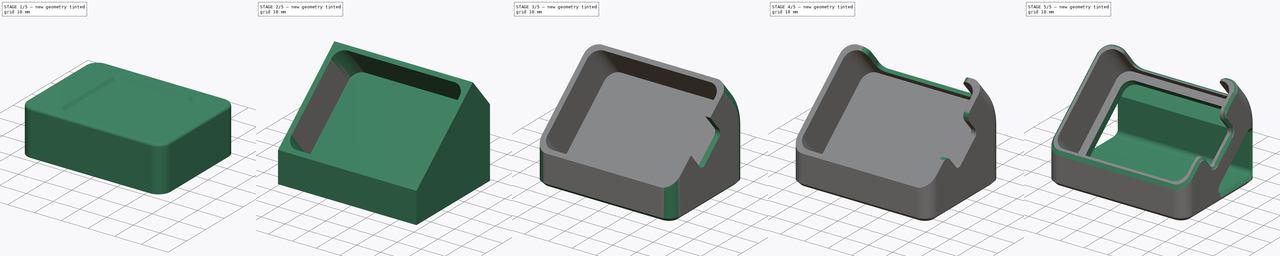
[diagram: build sequence overview — one tinted view per stage of 5, left to right]
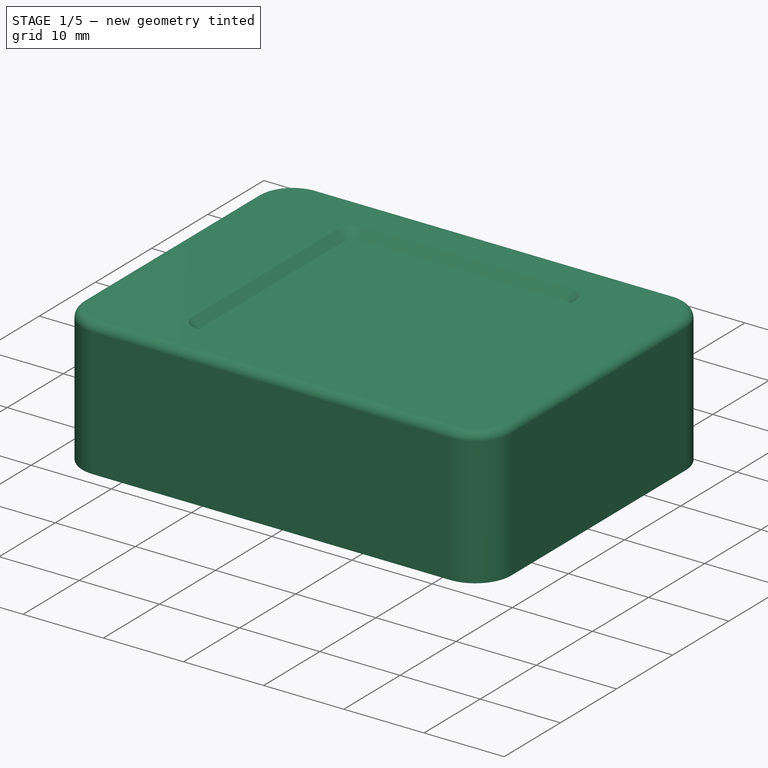
[diagram: stage 1 of 5 — iso view after this stage's code; geometry added in this stage tinted green]
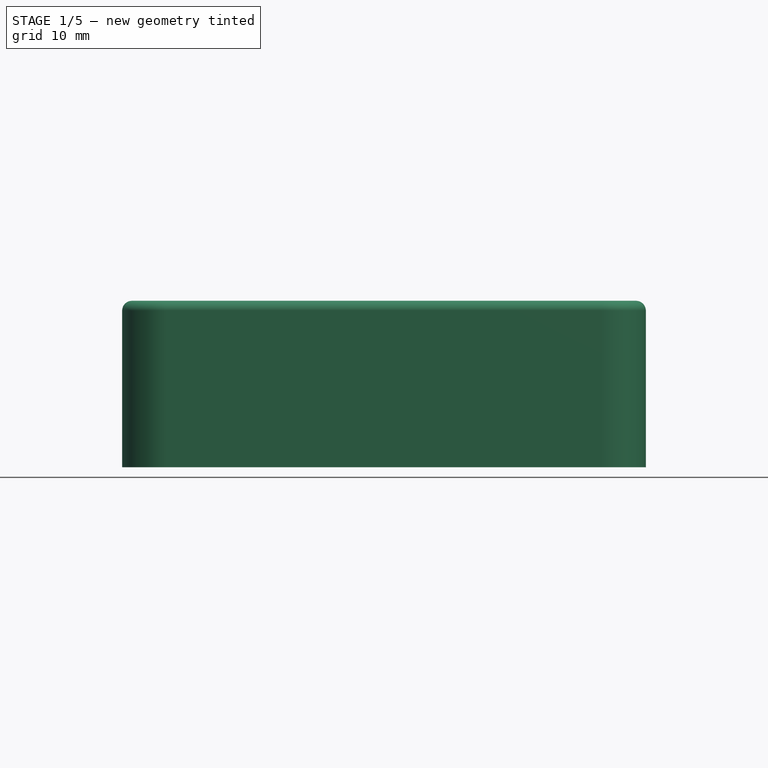
[diagram: stage 1 of 5 — front view after this stage's code; geometry added in this stage tinted green]
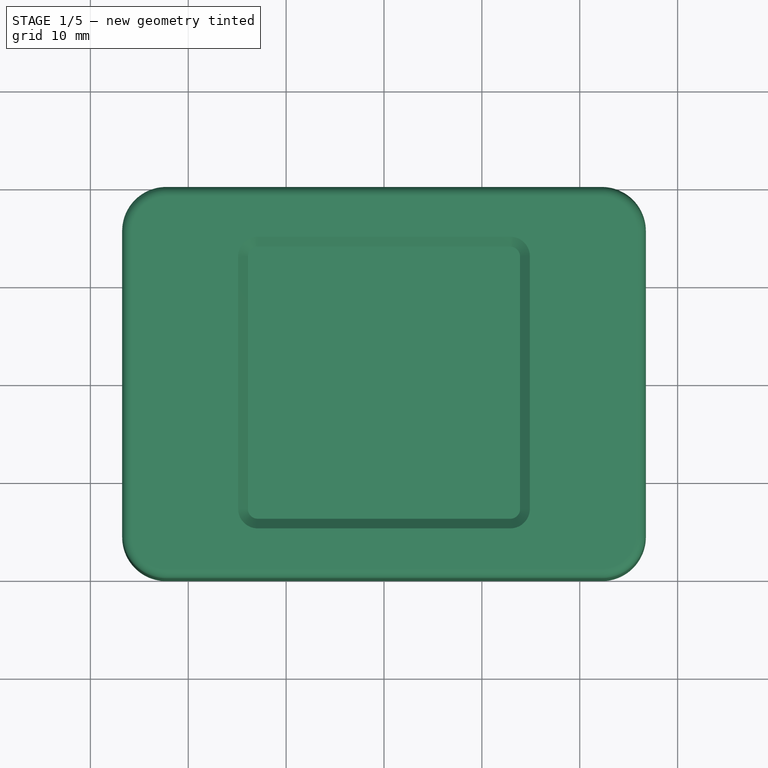
[diagram: stage 1 of 5 — top view after this stage's code; geometry added in this stage tinted green]
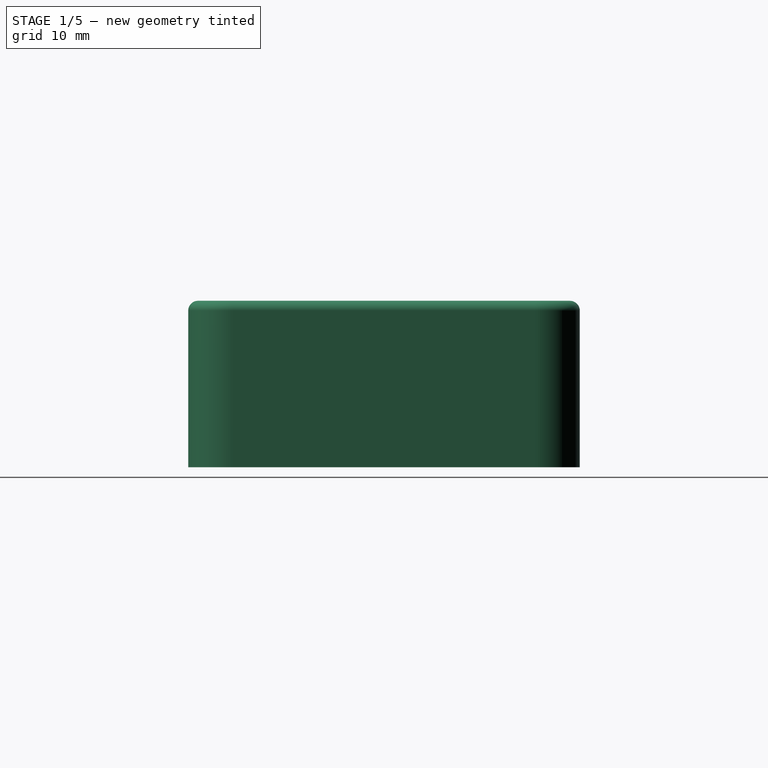
[diagram: stage 1 of 5 — right view after this stage's code; geometry added in this stage tinted green]
FCSTD DOCUMENT  (FreeCAD 1.0R39319 (Git))
Label: esp32s3-ePaper-stand
License: All rights reserved
LicenseURL: http://en.wikipedia.org/wiki/All_rights_reserved
objects: Sketcher::SketchObject×9, PartDesign::Pocket×8, PartDesign::Fillet×5, PartDesign::Chamfer×3, PartDesign::Pad×2, PartDesign::Body×2, PartDesign::SubShapeBinder×2
note: 76 computed .brp shape members not serialized (recipe doc carries the construction recipe); baked Part::Feature solids carry a one-line shape summary decoded from their .brp

FEATURE [Sketcher::SketchObject] Sketch
  ArcFitTolerance = 1e-06
  AttachmentSupport = -> [XY_Plane]
  FullyConstrained = true
  MakeInternals = false
  MapMode = 5
  sketch-geometry (10):
    g0: LineSegment StartX=-22.25 StartY=-20 StartZ=0 EndX=22.25 EndY=-20 EndZ=0
    g1: LineSegment StartX=26.75 StartY=-15.5 StartZ=0 EndX=26.75 EndY=15.5 EndZ=0
    g2: LineSegment StartX=22.25 StartY=20 StartZ=0 EndX=-22.25 EndY=20 EndZ=0
    g3: LineSegment StartX=-26.75 StartY=15.5 StartZ=0 EndX=-26.75 EndY=-15.5 EndZ=0
    g4: ArcOfCircle CenterX=-22.25 CenterY=-15.5 CenterZ=0 NormalX=0 NormalY=0 NormalZ=1 AngleXU=0 Radius=4.5 StartAngle=3.14159 EndAngle=4.71239
    g5: ArcOfCircle CenterX=22.25 CenterY=-15.5 CenterZ=0 NormalX=0 NormalY=0 NormalZ=1 AngleXU=0 Radius=4.5 StartAngle=4.71239 EndAngle=6.28319
    g6: ArcOfCircle CenterX=22.25 CenterY=15.5 CenterZ=0 NormalX=0 NormalY=0 NormalZ=1 AngleXU=0 Radius=4.5 StartAngle=1e-16 EndAngle=1.5708
    g7: ArcOfCircle CenterX=-22.25 CenterY=15.5 CenterZ=0 NormalX=0 NormalY=0 NormalZ=1 AngleXU=0 Radius=4.5 StartAngle=1.5708 EndAngle=3.14159
    g8: GeomPoint [constr] X=26.75 Y=20 Z=0
    g9: GeomPoint [constr] X=0 Y=0 Z=0
  constraints (22):
    c: Tangent(g0,g4) = -1.5708
    c: Tangent(g0,g5) = -1.5708
    c: Tangent(g1,g5) = -1.5708
    c: Tangent(g1,g6) = -1.5708
    c: Tangent(g2,g6) = -1.5708
    c: Tangent(g2,g7) = -1.5708
    c: Tangent(g3,g7) = -1.5708
    c: Tangent(g3,g4) = -1.5708
    c: Horizontal(g0)
    c: Horizontal(g2)
    c: Vertical(g1)
    c: Vertical(g3)
    c: Equal(g4,g5)
    c: Equal(g5,g6)
    c: Equal(g6,g7)
    c: Symmetric(g2,g0,g9)
    c: PointOnObject(g8,g1)
    c: PointOnObject(g8,g2)
    c: Distance(g1,g3) = 53.5
    c: Distance(g0,g2) = 40
    c: Radius(g5) = 4.5
    c: Coincident(g9,g-1)
FEATURE [PartDesign::Pad] Pad
  Direction = (0,0,1)
  Length = 17
  Length2 = 10
  Profile = -> Sketch
  ReferenceAxis = -> Sketch [N_Axis]
  Refine = true
  Suppressed = false
  Type = 0
FEATURE [PartDesign::Fillet] Fillet
  Base = -> Pad [Edge7]
  BaseFeature = -> Pad
  Radius = 1
  Refine = true
  SupportTransform = false
  Suppressed = false
  UseAllEdges = false
FEATURE [Sketcher::SketchObject] Sketch001
  ArcFitTolerance = 1e-06
  AttachmentOffset = pos=(0,0,-1) rot=(0,0,1;0rad)
  AttachmentSupport = -> [Fillet]
  FullyConstrained = true
  MakeInternals = false
  MapMode = 5
  Placement = pos=(0,0,16) rot=(0,0,1;0rad)
  sketch-geometry (10):
    g0: LineSegment StartX=-12.9 StartY=-13.9 StartZ=0 EndX=12.9 EndY=-13.9 EndZ=0
    g1: LineSegment StartX=13.9 StartY=-12.9 StartZ=0 EndX=13.9 EndY=12.9 EndZ=0
    g2: LineSegment StartX=12.9 StartY=13.9 StartZ=0 EndX=-12.9 EndY=13.9 EndZ=0
    g3: LineSegment StartX=-13.9 StartY=12.9 StartZ=0 EndX=-13.9 EndY=-12.9 EndZ=0
    g4: ArcOfCircle CenterX=-12.9 CenterY=-12.9 CenterZ=0 NormalX=0 NormalY=0 NormalZ=1 AngleXU=0 Radius=1 StartAngle=3.14159 EndAngle=4.71239
    g5: ArcOfCircle CenterX=12.9 CenterY=-12.9 CenterZ=0 NormalX=0 NormalY=0 NormalZ=1 AngleXU=0 Radius=1 StartAngle=4.71239 EndAngle=6.28319
    g6: ArcOfCircle CenterX=12.9 CenterY=12.9 CenterZ=0 NormalX=0 NormalY=0 NormalZ=1 AngleXU=0 Radius=1 StartAngle=0 EndAngle=1.5708
    g7: ArcOfCircle CenterX=-12.9 CenterY=12.9 CenterZ=0 NormalX=0 NormalY=0 NormalZ=1 AngleXU=0 Radius=1 StartAngle=1.5708 EndAngle=3.14159
    g8: GeomPoint [constr] X=13.9 Y=13.9 Z=0
    g9: GeomPoint [constr] X=0 Y=0 Z=0
  constraints (22):
    c: Tangent(g0,g4) = -1.5708
    c: Tangent(g0,g5) = -1.5708
    c: Tangent(g1,g5) = -1.5708
    c: Tangent(g1,g6) = -1.5708
    c: Tangent(g2,g6) = -1.5708
    c: Tangent(g2,g7) = -1.5708
    c: Tangent(g3,g7) = -1.5708
    c: Tangent(g3,g4) = -1.5708
    c: Horizontal(g0)
    c: Horizontal(g2)
    c: Vertical(g1)
    c: Vertical(g3)
    c: Equal(g4,g5)
    c: Equal(g5,g6)
    c: Equal(g6,g7)
    c: Symmetric(g2,g0,g9)
    c: PointOnObject(g8,g1)
    c: PointOnObject(g8,g2)
    c: Distance(g1,g3) = 27.8
    c: Radius(g5) = 1
    c: Coincident(g9,g-1)
    c: Equal(g3,g0)
FEATURE [PartDesign::Pocket] Pocket
  BaseFeature = -> Fillet
  Direction = (0,0,-1)
  Length = 5
  Length2 = 5
  Profile = -> Sketch001
  ReferenceAxis = -> Sketch001 [N_Axis]
  Refine = true
  Reversed = true
  Suppressed = false
  TaperAngle = 45
  Type = 0
FEATURE [Sketcher::SketchObject] Sketch002
  ArcFitTolerance = 1e-06
  AttachmentSupport = -> [Pocket]
  ExternalGeometry = -> [Pocket]
  FullyConstrained = true
  MakeInternals = false
  MapMode = 5
  Placement = pos=(0,20,0) rot=(0,0.707107,0.707107;3.14159rad)
  sketch-geometry (12):
    g0: LineSegment StartX=3.55 StartY=9.6 StartZ=0 EndX=3.55 EndY=7.5 EndZ=0
    g1: LineSegment StartX=3.55 StartY=7.5 StartZ=0 EndX=16.05 EndY=7.5 EndZ=0
    g2: LineSegment StartX=16.05 StartY=7.5 StartZ=0 EndX=16.05 EndY=9.6 EndZ=0
    g3: LineSegment StartX=16.05 StartY=9.6 StartZ=0 EndX=3.55 EndY=9.6 EndZ=0
    g4: LineSegment StartX=-17.75 StartY=13.5 StartZ=0 EndX=-17.75 EndY=6.3 EndZ=0
    g5: LineSegment StartX=-17.75 StartY=6.3 StartZ=0 EndX=-10.55 EndY=6.3 EndZ=0
    g6: LineSegment StartX=-10.55 StartY=6.3 StartZ=0 EndX=-10.55 EndY=13.5 EndZ=0
    g7: LineSegment StartX=-10.55 StartY=13.5 StartZ=0 EndX=-17.75 EndY=13.5 EndZ=0
    g8: LineSegment StartX=-6.25 StartY=13.5 StartZ=0 EndX=-6.25 EndY=6.3 EndZ=0
    g9: LineSegment StartX=-6.25 StartY=6.3 StartZ=0 EndX=0.95 EndY=6.3 EndZ=0
    g10: LineSegment StartX=0.95 StartY=6.3 StartZ=0 EndX=0.95 EndY=13.5 EndZ=0
    g11: LineSegment StartX=0.95 StartY=13.5 StartZ=0 EndX=-6.25 EndY=13.5 EndZ=0
  constraints (36):
    c: Coincident(g0,g1)
    c: Coincident(g1,g2)
    c: Coincident(g2,g3)
    c: Coincident(g3,g0)
    c: Vertical(g0)
    c: Vertical(g2)
    c: Horizontal(g1)
    c: Horizontal(g3)
    c: Coincident(g4,g5)
    c: Coincident(g5,g6)
    c: Coincident(g6,g7)
    c: Coincident(g7,g4)
    c: Vertical(g4)
    c: Vertical(g6)
    c: Horizontal(g5)
    c: Horizontal(g7)
    c: Coincident(g8,g9)
    c: Coincident(g9,g10)
    c: Coincident(g10,g11)
    c: Coincident(g11,g8)
    c: Vertical(g8)
    c: Vertical(g10)
    c: Horizontal(g9)
    c: Horizontal(g11)
    c: Equal(g7,g11)
    c: Equal(g11,g8)
    c: Equal(g7,g6)
    c: Horizontal(g5,g8)
    c: DistanceY(g-1,g9) = 6.3
    c: DistanceY(g-1,g1) = 7.5
    c: DistanceX(g3,g3) = 12.5
    c: DistanceX(g11,g11) = 7.2
    c: DistanceX(g6,g8) = 4.3
    c: DistanceX(g-3,g4) = 9
    c: DistanceX(g2,g-4) = 10.7
    c: DistanceY(g2,g2) = 2.1
FEATURE [PartDesign::Pocket] Pocket001
  BaseFeature = -> Pocket
  Direction = (0,-1,2e-16)
  Length = 0.5
  Length2 = 5
  Profile = -> Sketch002
  ReferenceAxis = -> Sketch002 [N_Axis]
  Refine = true
  Suppressed = false
  Type = 0
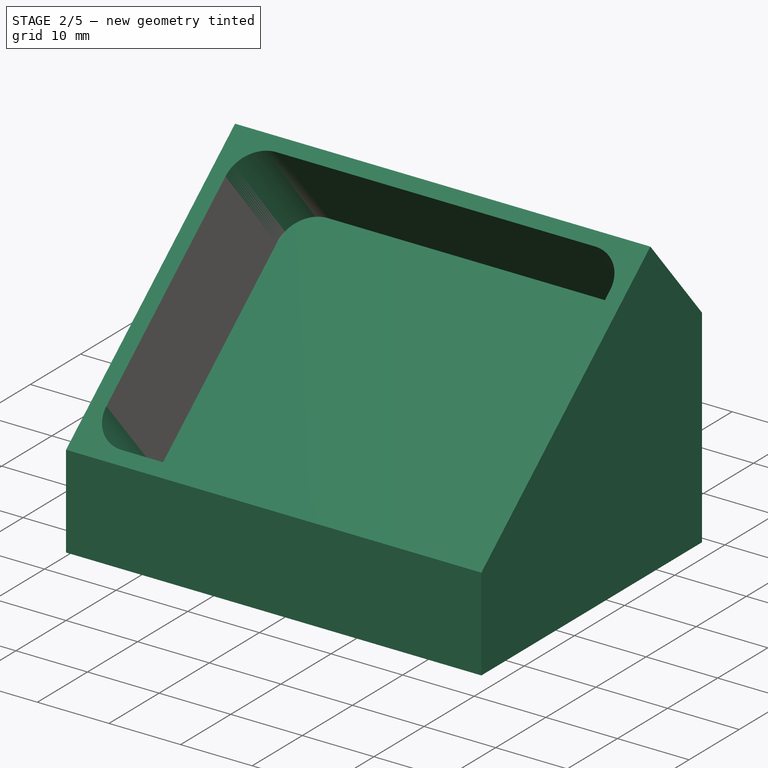
[diagram: stage 2 of 5 — iso view after this stage's code; geometry added in this stage tinted green]
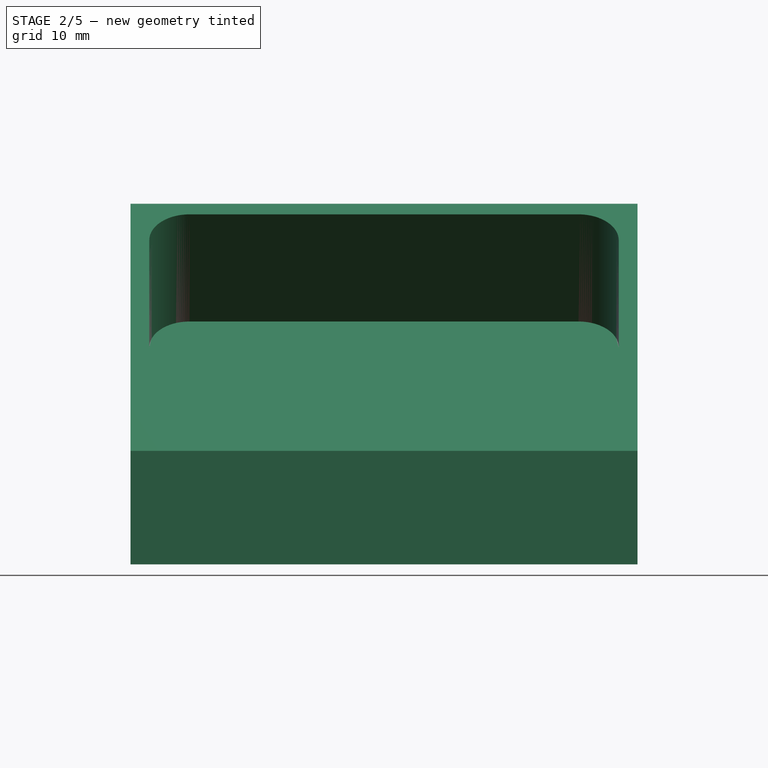
[diagram: stage 2 of 5 — front view after this stage's code; geometry added in this stage tinted green]
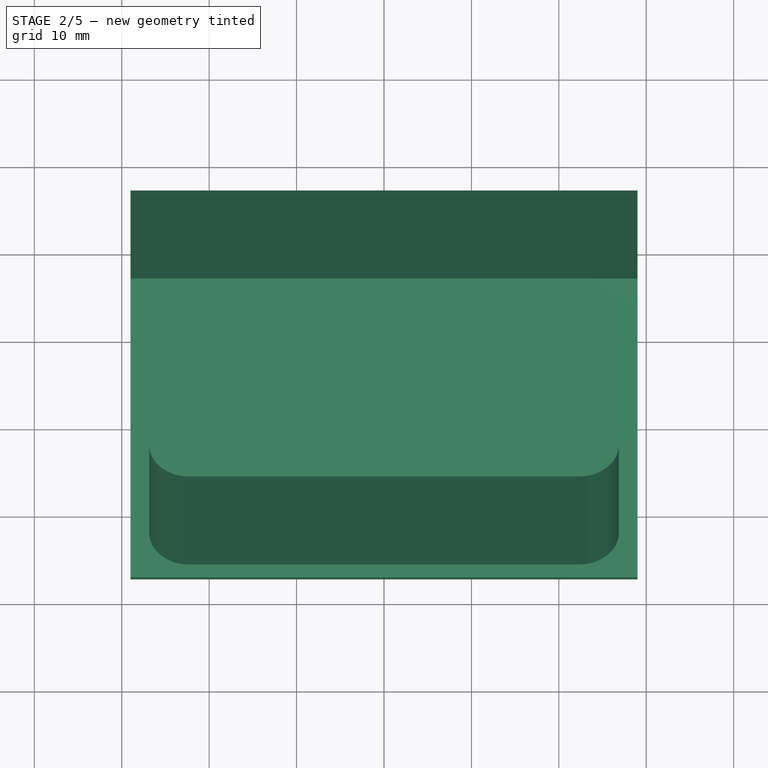
[diagram: stage 2 of 5 — top view after this stage's code; geometry added in this stage tinted green]
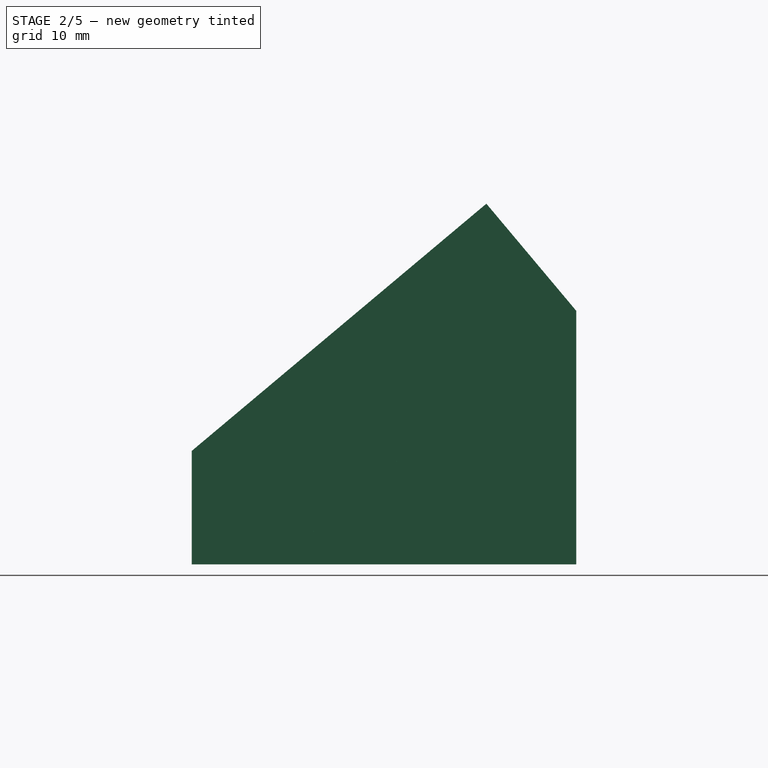
[diagram: stage 2 of 5 — right view after this stage's code; geometry added in this stage tinted green]
FEATURE [Sketcher::SketchObject] Sketch003
  ArcFitTolerance = 1e-06
  AttachmentSupport = -> [Pocket001]
  FullyConstrained = true
  MakeInternals = false
  MapMode = 5
  Placement = pos=(26.75,0,0) rot=(0.57735,0.57735,0.57735;2.0944rad)
  sketch-geometry (10):
    g0: LineSegment StartX=-3.6 StartY=8.4 StartZ=0 EndX=3.6 EndY=8.4 EndZ=0
    g1: LineSegment StartX=4.6 StartY=9.4 StartZ=0 EndX=4.6 EndY=10.9 EndZ=0
    g2: LineSegment StartX=3.6 StartY=11.9 StartZ=0 EndX=-3.6 EndY=11.9 EndZ=0
    g3: LineSegment StartX=-4.6 StartY=10.9 StartZ=0 EndX=-4.6 EndY=9.4 EndZ=0
    g4: ArcOfCircle CenterX=-3.6 CenterY=9.4 CenterZ=0 NormalX=0 NormalY=0 NormalZ=1 AngleXU=0 Radius=1 StartAngle=3.14159 EndAngle=4.71239
    g5: ArcOfCircle CenterX=3.6 CenterY=9.4 CenterZ=0 NormalX=0 NormalY=0 NormalZ=1 AngleXU=0 Radius=1 StartAngle=4.71239 EndAngle=6.28319
    g6: ArcOfCircle CenterX=3.6 CenterY=10.9 CenterZ=0 NormalX=0 NormalY=0 NormalZ=1 AngleXU=0 Radius=1 StartAngle=0 EndAngle=1.5708
    g7: ArcOfCircle CenterX=-3.6 CenterY=10.9 CenterZ=0 NormalX=0 NormalY=0 NormalZ=1 AngleXU=0 Radius=1 StartAngle=1.5708 EndAngle=3.14159
    g8: GeomPoint [constr] X=4.6 Y=11.9 Z=0
    g9: GeomPoint [constr] X=0 Y=10.15 Z=0
  constraints (23):
    c: Tangent(g0,g4) = -1.5708
    c: Tangent(g0,g5) = -1.5708
    c: Tangent(g1,g5) = -1.5708
    c: Tangent(g1,g6) = -1.5708
    c: Tangent(g2,g6) = -1.5708
    c: Tangent(g2,g7) = -1.5708
    c: Tangent(g3,g7) = -1.5708
    c: Tangent(g3,g4) = -1.5708
    c: Horizontal(g0)
    c: Horizontal(g2)
    c: Vertical(g1)
    c: Vertical(g3)
    c: Equal(g4,g5)
    c: Equal(g5,g6)
    c: Equal(g6,g7)
    c: Symmetric(g2,g0,g9)
    c: PointOnObject(g8,g1)
    c: PointOnObject(g8,g2)
    c: Distance(g1,g3) = 9.2
    c: Distance(g0,g2) = 3.5
    c: Radius(g5) = 1
    c: PointOnObject(g9,g-2)
    c: DistanceY(g-1,g0) = 8.4
FEATURE [PartDesign::Pocket] Pocket002
  BaseFeature = -> Pocket001
  Direction = (-1,0,0)
  Length = 5
  Length2 = 5
  Profile = -> Sketch003
  ReferenceAxis = -> Sketch003 [N_Axis]
  Refine = true
  Suppressed = false
  Type = 0
FEATURE [PartDesign::Body] Body  label="esp32module"
  AllowCompound = false
  Group = -> [Sketch,Pad,Fillet,Sketch001,Pocket,Sketch002,Pocket001,Sketch003,Pocket002]
  Origin = -> Origin
  Tip = -> Pocket002
FEATURE [PartDesign::SubShapeBinder] Binder
  BindCopyOnChange = 0
  BindMode = 0
  ClaimChildren = false
  Context = -> Body001 [Binder.]
  Fuse = false
  MakeFace = true
  OffsetFill = false
  OffsetIntersection = false
  OffsetJoinType = 0
  OffsetOpenResult = false
  PartialLoad = false
  Placement = pos=(0,0,0) rot=(1,0,0;0.698132rad)
  Refine = true
  Relative = true
  Support = -> [Body]
  _Version = 2
FEATURE [Sketcher::SketchObject] Sketch004
  ArcFitTolerance = 1e-06
  AttachmentSupport = -> [YZ_Plane001]
  ExternalGeometry = -> [Binder]
  FullyConstrained = true
  MakeInternals = false
  MapMode = 5
  Placement = pos=(0,0,0) rot=(0.57735,0.57735,0.57735;2.0944rad)
  sketch-geometry (5):
    g0: LineSegment StartX=-27.1376 StartY=-14.8558 StartZ=0 EndX=-27.1376 EndY=-1.88462 EndZ=0
    g1: LineSegment StartX=-27.1376 StartY=-1.88462 StartZ=0 EndX=6.56838 EndY=26.398 EndZ=0
    g2: LineSegment StartX=6.56838 StartY=26.398 StartZ=0 EndX=16.853 EndY=14.1413 EndZ=0
    g3: LineSegment StartX=16.853 StartY=14.1413 StartZ=0 EndX=16.853 EndY=-14.8558 EndZ=0
    g4: LineSegment StartX=16.853 StartY=-14.8558 StartZ=0 EndX=-27.1376 EndY=-14.8558 EndZ=0
  constraints (15):
    c: Coincident(g0,g1)
    c: Coincident(g1,g2)
    c: Coincident(g2,g3)
    c: Vertical(g3)
    c: Coincident(g3,g4)
    c: Coincident(g4,g0)
    c: Horizontal(g4)
    c: Vertical(g0)
    c: PointOnObject(g-3,g1)
    c: PointOnObject(g-4,g1)
    c: Distance(g0,g-3) = 2
    c: Distance(g-4,g1) = 2
    c: Perpendicular(g2,g1)
    c: DistanceY(g0,g-3) = 2
    c: PointOnObject(g2,g-5)
FEATURE [PartDesign::Pad] Pad001
  Direction = (1,0,0)
  Length = 58
  Length2 = 10
  Midplane = true
  Placement = pos=(0,0,0) rot=(1,1,1;2.0944rad)
  Profile = -> Sketch004
  ReferenceAxis = -> Sketch004 [N_Axis]
  Refine = true
  Suppressed = false
  Type = 0
FEATURE [PartDesign::SubShapeBinder] Binder001
  BindCopyOnChange = 0
  BindMode = 0
  ClaimChildren = false
  Context = -> Body001 [Binder001.]
  Fuse = false
  MakeFace = true
  Offset = 0.1
  OffsetFill = false
  OffsetIntersection = false
  OffsetJoinType = 0
  OffsetOpenResult = false
  PartialLoad = false
  Refine = true
  Relative = true
  Support = -> [Binder[Face4]]
  _Version = 2
FEATURE [PartDesign::Pocket] Pocket003
  BaseFeature = -> Pad001
  Direction = (0,0.642788,-0.766044)
  Length = 5
  Length2 = 5
  Placement = pos=(0,0,0) rot=(1,1,1;2.0944rad)
  Profile = -> Binder001
  Refine = true
  Reversed = true
  Suppressed = false
  Type = 1
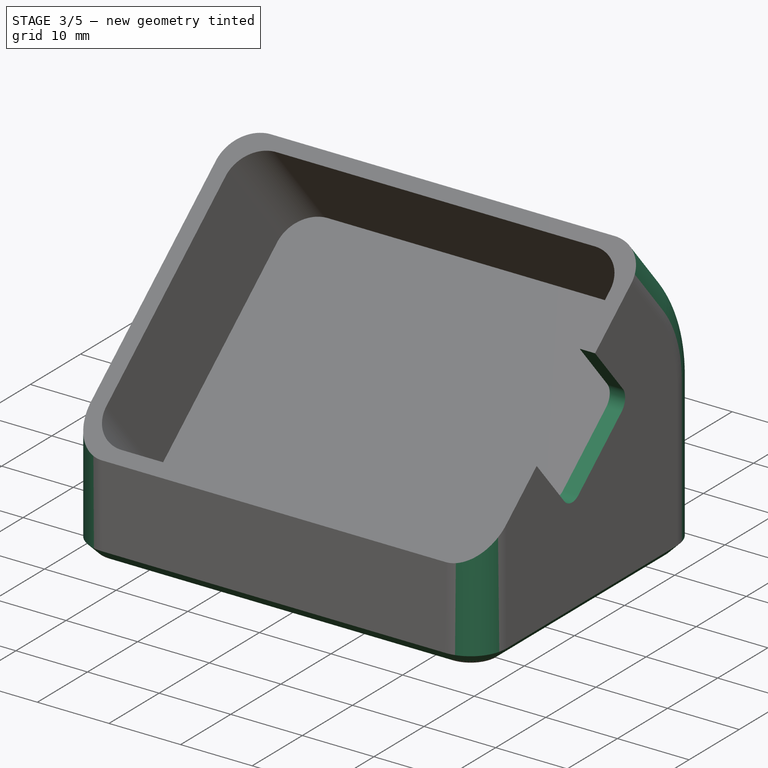
[diagram: stage 3 of 5 — iso view after this stage's code; geometry added in this stage tinted green]
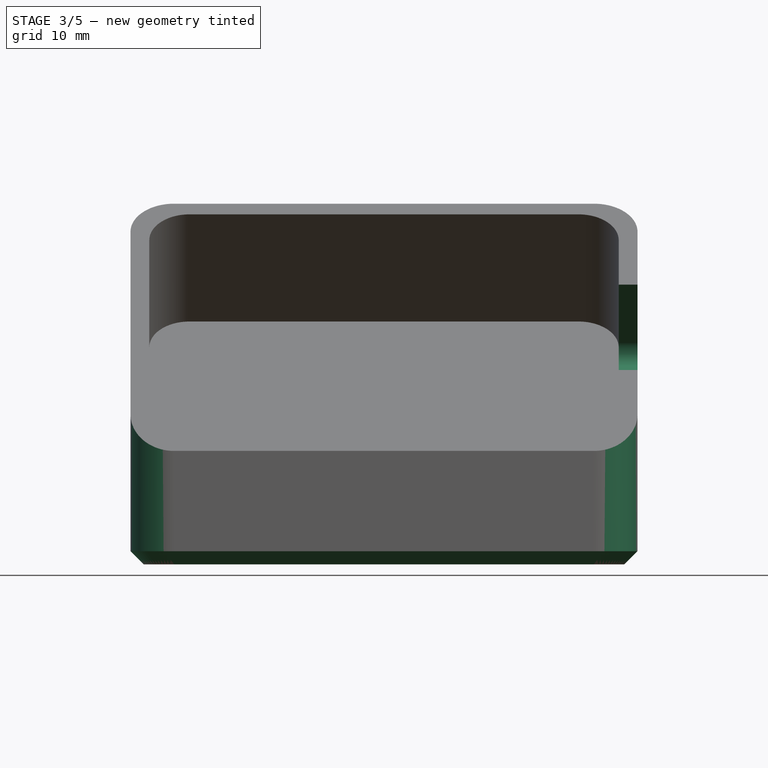
[diagram: stage 3 of 5 — front view after this stage's code; geometry added in this stage tinted green]
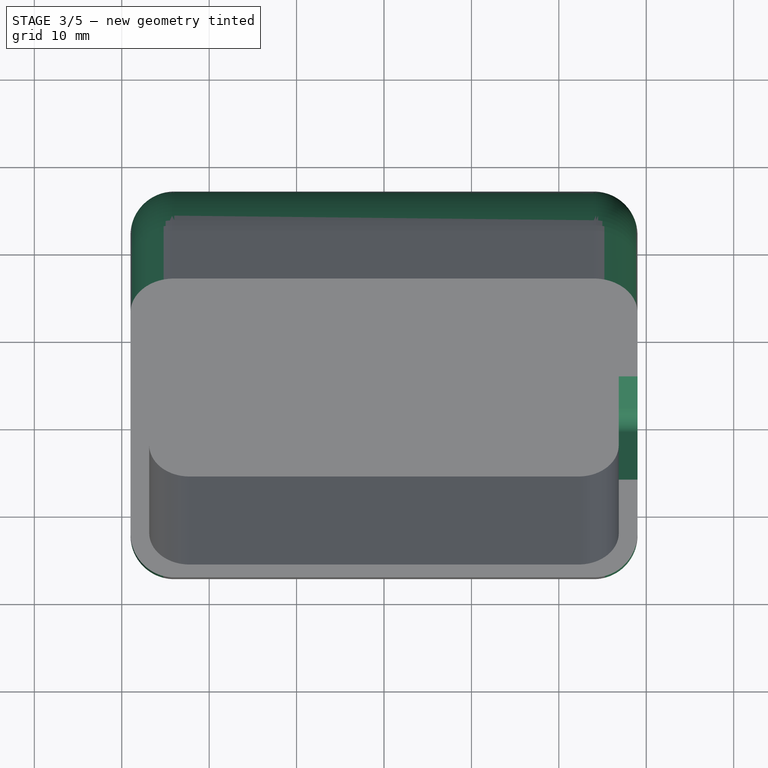
[diagram: stage 3 of 5 — top view after this stage's code; geometry added in this stage tinted green]
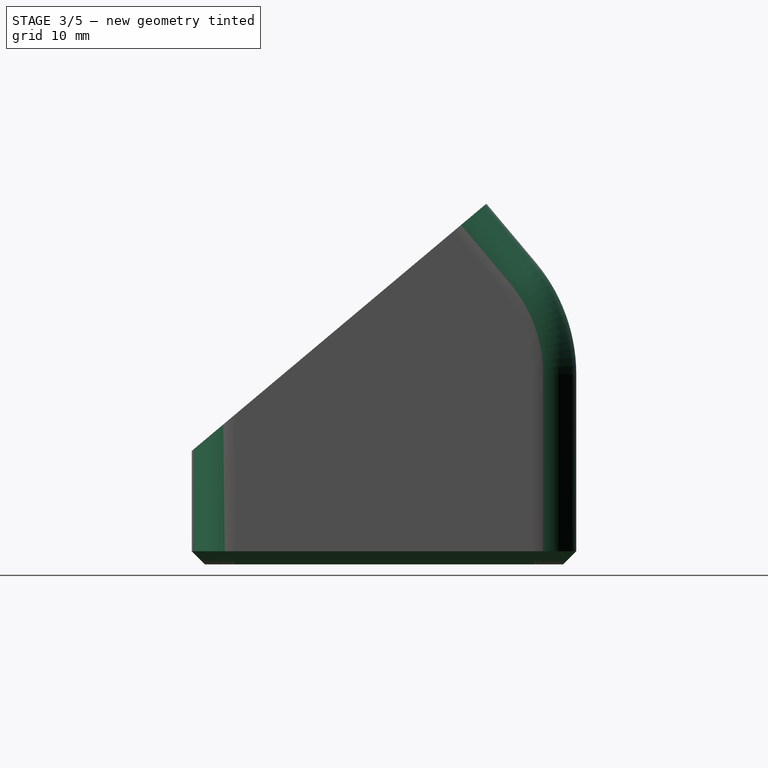
[diagram: stage 3 of 5 — right view after this stage's code; geometry added in this stage tinted green]
FEATURE [PartDesign::Fillet] Fillet001
  Base = -> Pocket003 [Edge23]
  BaseFeature = -> Pocket003
  Placement = pos=(0,0,0) rot=(1,1,1;2.0944rad)
  Radius = 20
  Refine = true
  SupportTransform = false
  Suppressed = false
  UseAllEdges = false
FEATURE [PartDesign::Fillet] Fillet002
  Base = -> Fillet001 [Edge9,Edge1,Edge25,Edge5]
  BaseFeature = -> Fillet001
  Placement = pos=(0,0,0) rot=(1,1,1;2.0944rad)
  Radius = 5
  Refine = true
  SupportTransform = false
  Suppressed = false
  UseAllEdges = false
FEATURE [PartDesign::Chamfer] Chamfer
  Angle = 45
  Base = -> Fillet002 [Edge30]
  BaseFeature = -> Fillet002
  ChamferType = 0
  FlipDirection = false
  Placement = pos=(0,0,0) rot=(1,1,1;2.0944rad)
  Refine = true
  Size = 1.5
  Size2 = 1
  SupportTransform = false
  Suppressed = false
  UseAllEdges = false
FEATURE [Sketcher::SketchObject] Sketch005
  ArcFitTolerance = 1e-06
  AttachmentSupport = -> [Chamfer]
  ExternalGeometry = -> [Binder]
  FullyConstrained = true
  MakeInternals = false
  MapMode = 5
  Placement = pos=(29,0,0) rot=(0.57735,0.57735,0.57735;2.0944rad)
  sketch-geometry (8):
    g0: LineSegment StartX=-16.7493 StartY=8.13757 StartZ=0 EndX=-10.5786 EndY=0.783543 EndZ=0
    g1: LineSegment StartX=-7.7609 StartY=0.537029 StartZ=0 EndX=0.818796 EndY=7.73625 EndZ=0
    g2: LineSegment StartX=1.06531 StartY=10.5539 StartZ=0 EndX=-5.10545 EndY=17.9079 EndZ=0
    g3: LineSegment StartX=-5.10545 StartY=17.9079 StartZ=0 EndX=-16.7493 EndY=8.13757 EndZ=0
    g4: ArcOfCircle CenterX=-9.04648 CenterY=2.06912 CenterZ=0 NormalX=0 NormalY=0 NormalZ=1 AngleXU=0 Radius=2 StartAngle=3.83972 EndAngle=5.41052
    g5: GeomPoint [constr] X=-9.29299 Y=-0.748546 Z=0
    g6: ArcOfCircle CenterX=-0.466779 CenterY=9.26834 CenterZ=0 NormalX=0 NormalY=0 NormalZ=1 AngleXU=0 Radius=2 StartAngle=5.41052 EndAngle=6.98132
    g7: GeomPoint [constr] X=2.35088 Y=9.02183 Z=0
  constraints (20):
    c: Coincident(g2,g3)
    c: Coincident(g3,g0)
    c: Parallel(g3,g1)
    c: Parallel(g2,g0)
    c: Perpendicular(g1,g0)
    c: Parallel(g-3,g3)
    c: PointOnObject(g0,g-3)
    c: Distance(g-4,g1) = 3
    c: Distance(g7,g-5) = 3
    c: Distance(g0,g-6) = 3
    c: PointOnObject(g5,g0)
    c: PointOnObject(g5,g1)
    c: Tangent(g0,g4) = -1.5708
    c: Tangent(g1,g4) = -1.5708
    c: PointOnObject(g7,g1)
    c: PointOnObject(g7,g2)
    c: Tangent(g1,g6) = -1.5708
    c: Tangent(g2,g6) = -1.5708
    c: Equal(g6,g4)
    c: Radius(g4) = 2
FEATURE [PartDesign::Pocket] Pocket004
  BaseFeature = -> Chamfer
  Direction = (-1,0,0)
  Length = 5
  Length2 = 5
  Placement = pos=(0,0,0) rot=(1,1,1;2.0944rad)
  Profile = -> Sketch005
  ReferenceAxis = -> Sketch005 [N_Axis]
  Refine = true
  Suppressed = false
  Type = 0
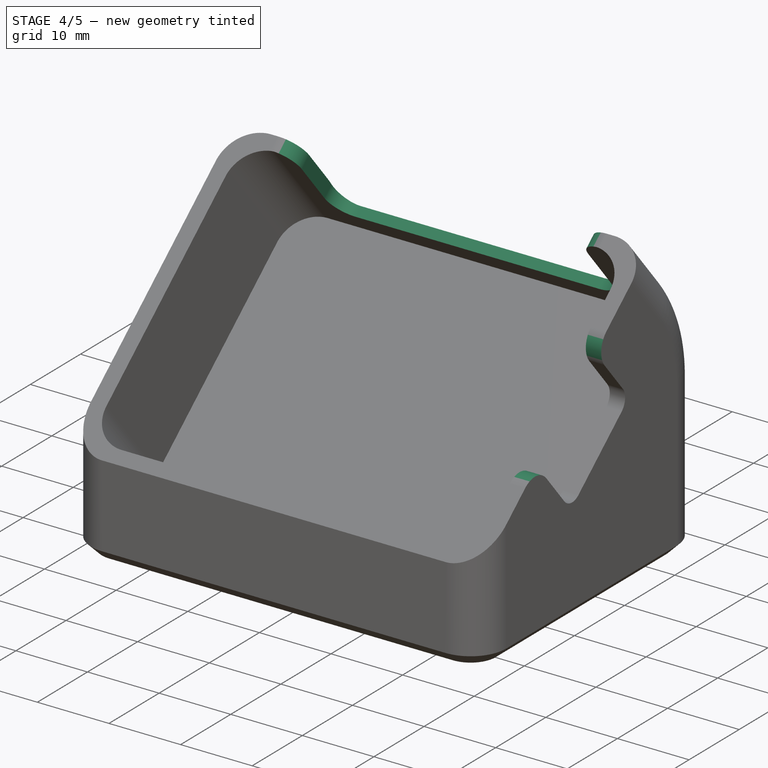
[diagram: stage 4 of 5 — iso view after this stage's code; geometry added in this stage tinted green]
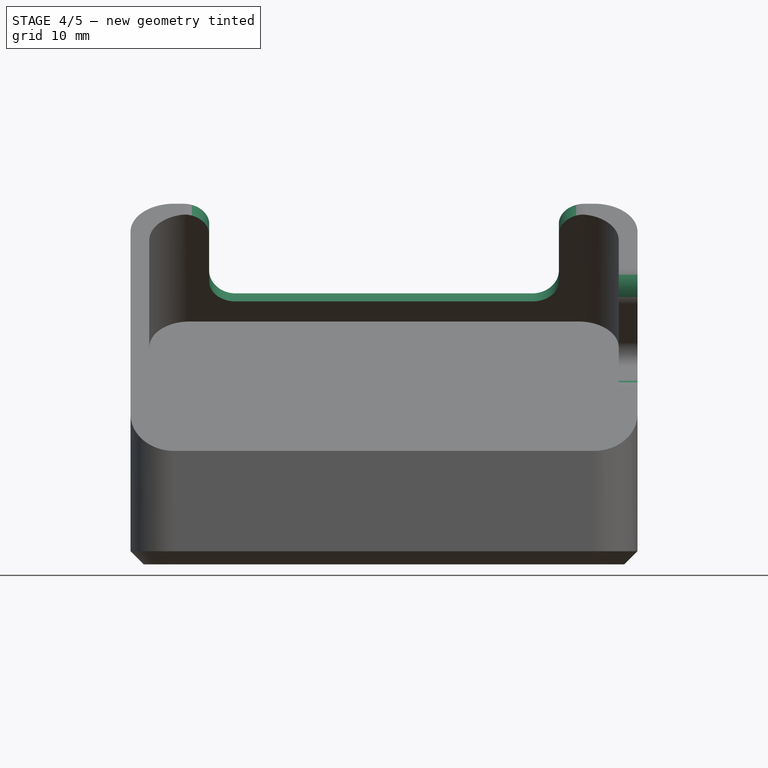
[diagram: stage 4 of 5 — front view after this stage's code; geometry added in this stage tinted green]
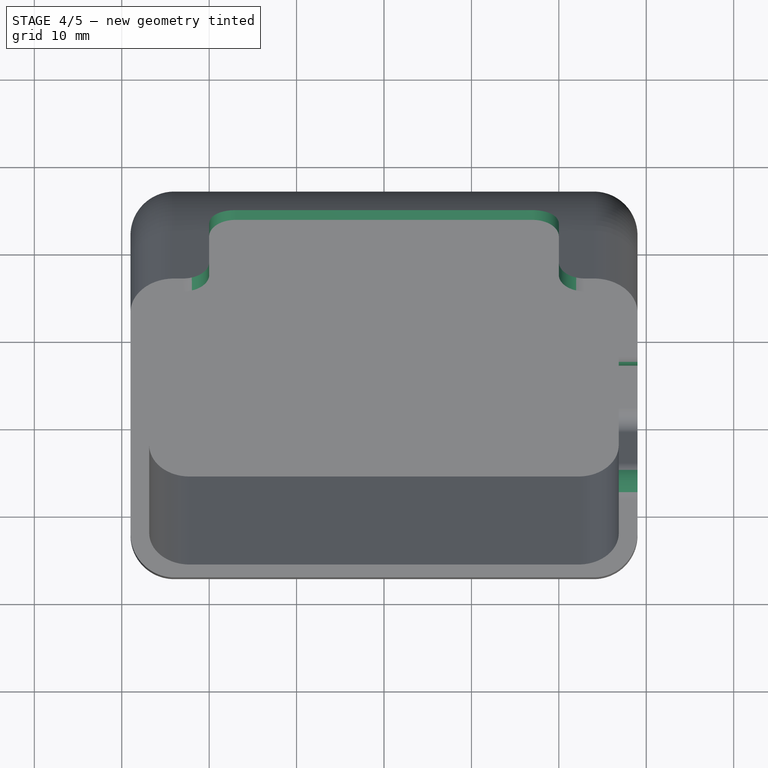
[diagram: stage 4 of 5 — top view after this stage's code; geometry added in this stage tinted green]
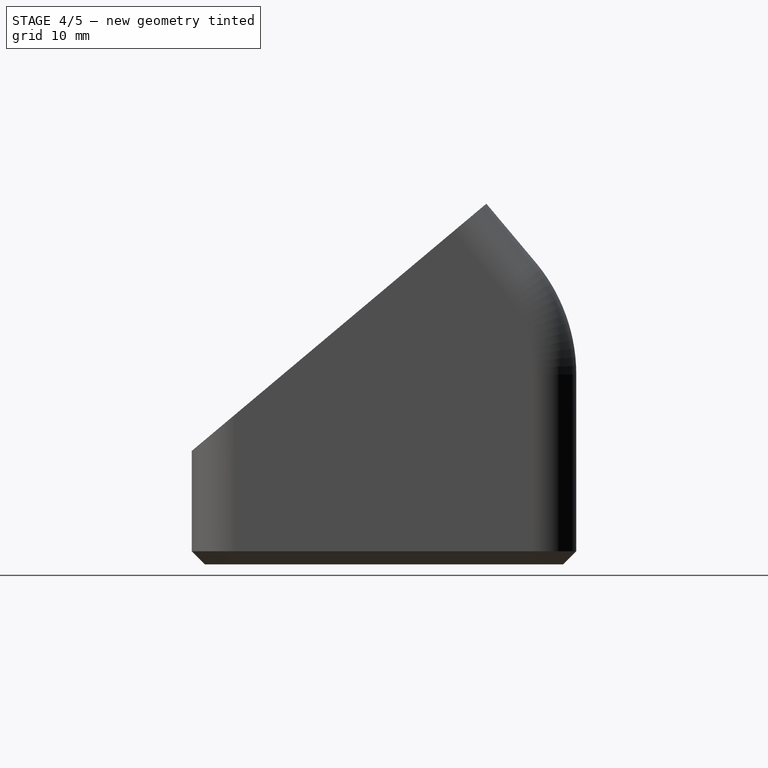
[diagram: stage 4 of 5 — right view after this stage's code; geometry added in this stage tinted green]
FEATURE [PartDesign::Fillet] Fillet003
  Base = -> Pocket004 [Edge27,Edge17]
  BaseFeature = -> Pocket004
  Placement = pos=(0,0,0) rot=(1,1,1;2.0944rad)
  Radius = 3
  Refine = true
  SupportTransform = false
  Suppressed = false
  UseAllEdges = false
FEATURE [Sketcher::SketchObject] Sketch006
  ArcFitTolerance = 1e-06
  AttachmentSupport = -> [Fillet003]
  FullyConstrained = true
  MakeInternals = false
  MapMode = 5
  Placement = pos=(3.7e-15,16.853,14.1413) rot=(-0.389282,-0.389282,-0.834817;1.75037rad)
  sketch-geometry (10):
    g0: LineSegment StartX=20 StartY=-17 StartZ=0 EndX=20 EndY=17 EndZ=0
    g1: LineSegment StartX=17 StartY=20 StartZ=0 EndX=6 EndY=20 EndZ=0
    g2: LineSegment StartX=3 StartY=17 StartZ=0 EndX=3 EndY=-17 EndZ=0
    g3: LineSegment StartX=6 StartY=-20 StartZ=0 EndX=17 EndY=-20 EndZ=0
    g4: ArcOfCircle CenterX=17 CenterY=-17 CenterZ=0 NormalX=0 NormalY=0 NormalZ=1 AngleXU=0 Radius=3 StartAngle=4.71239 EndAngle=6.28319
    g5: ArcOfCircle CenterX=17 CenterY=17 CenterZ=0 NormalX=0 NormalY=0 NormalZ=1 AngleXU=0 Radius=3 StartAngle=3e-16 EndAngle=1.5708
    g6: ArcOfCircle CenterX=6 CenterY=17 CenterZ=0 NormalX=0 NormalY=0 NormalZ=1 AngleXU=0 Radius=3 StartAngle=1.5708 EndAngle=3.14159
    g7: ArcOfCircle CenterX=6 CenterY=-17 CenterZ=0 NormalX=0 NormalY=0 NormalZ=1 AngleXU=0 Radius=3 StartAngle=3.14159 EndAngle=4.71239
    g8: GeomPoint [constr] X=3 Y=20 Z=0
    g9: GeomPoint [constr] X=11.5 Y=0 Z=0
  constraints (23):
    c: Tangent(g0,g4) = -1.5708
    c: Tangent(g0,g5) = -1.5708
    c: Tangent(g1,g5) = -1.5708
    c: Tangent(g1,g6) = -1.5708
    c: Tangent(g2,g6) = -1.5708
    c: Tangent(g2,g7) = -1.5708
    c: Tangent(g3,g7) = -1.5708
    c: Tangent(g3,g4) = -1.5708
    c: Vertical(g0)
    c: Vertical(g2)
    c: Horizontal(g1)
    c: Horizontal(g3)
    c: Equal(g4,g5)
    c: Equal(g5,g6)
    c: Equal(g6,g7)
    c: Symmetric(g2,g0,g9)
    c: PointOnObject(g8,g1)
    c: PointOnObject(g8,g2)
    c: Radius(g5) = 3
    c: PointOnObject(g9,g-1)
    c: Distance(g-2,g2) = 3
    c: DistanceY(g3,g1) = 40
    c: DistanceX(g1,g1) = 11
FEATURE [PartDesign::Pocket] Pocket005
  BaseFeature = -> Fillet003
  Direction = (-1e-16,-0.766044,-0.642788)
  Length = 5
  Length2 = 5
  Placement = pos=(0,0,0) rot=(1,1,1;2.0944rad)
  Profile = -> Sketch006
  ReferenceAxis = -> Sketch006 [N_Axis]
  Refine = true
  Suppressed = false
  Type = 0
FEATURE [PartDesign::Fillet] Fillet004
  Base = -> Pocket005 [Edge60,Edge5]
  BaseFeature = -> Pocket005
  Placement = pos=(0,0,0) rot=(1,1,1;2.0944rad)
  Radius = 3
  Refine = true
  SupportTransform = false
  Suppressed = false
  UseAllEdges = false
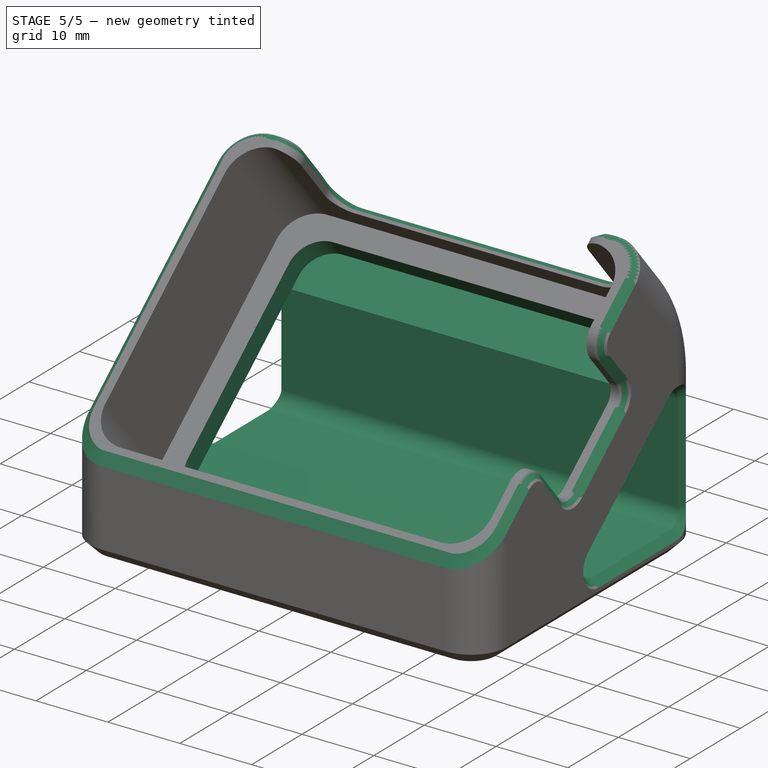
[diagram: stage 5 of 5 — iso view after this stage's code; geometry added in this stage tinted green]
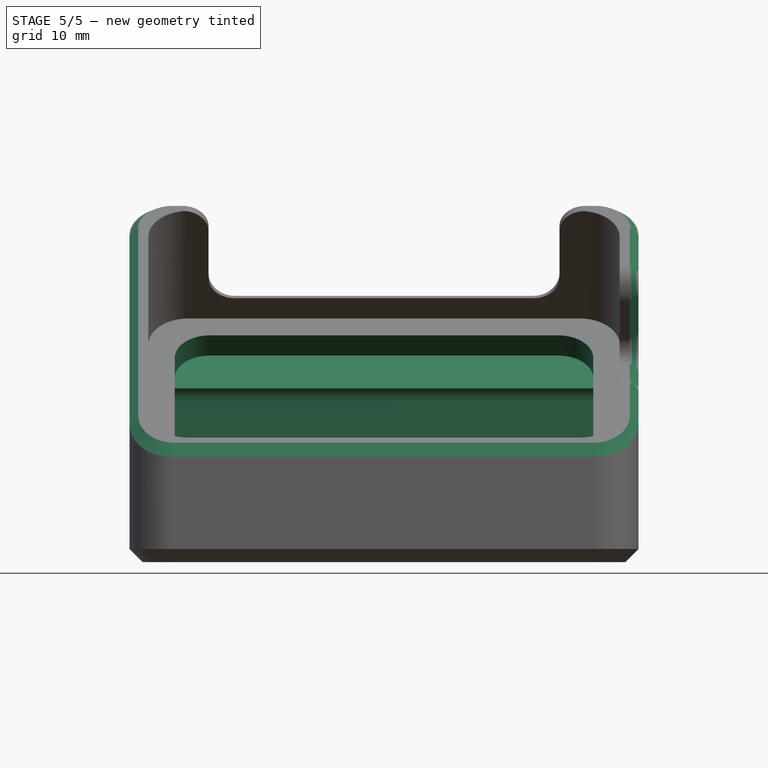
[diagram: stage 5 of 5 — front view after this stage's code; geometry added in this stage tinted green]
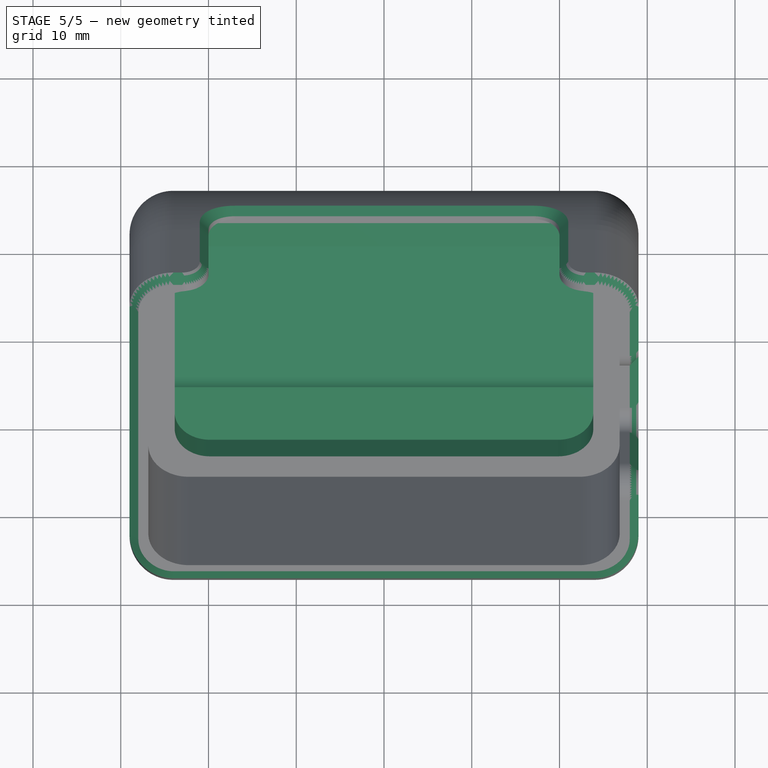
[diagram: stage 5 of 5 — top view after this stage's code; geometry added in this stage tinted green]
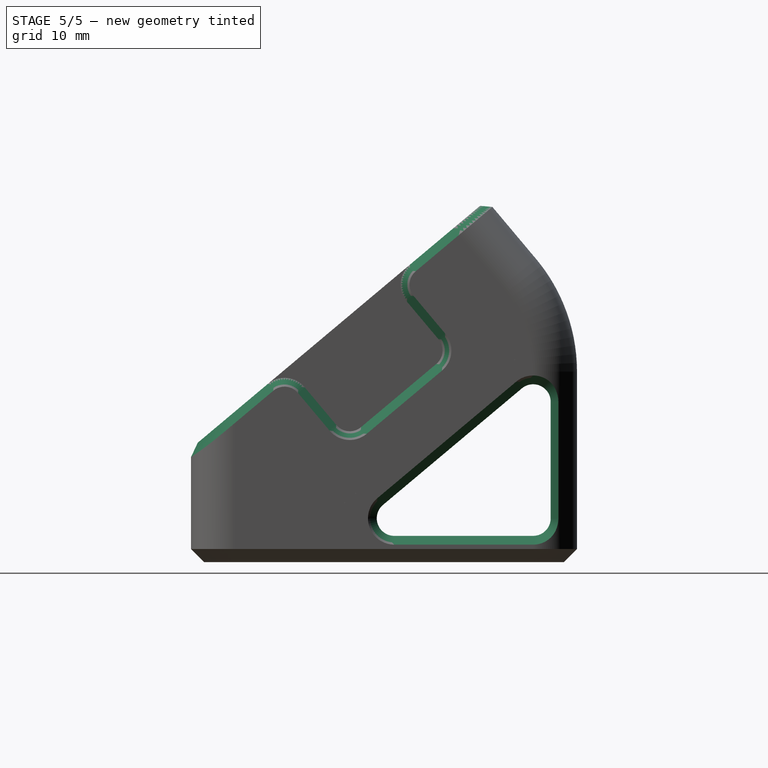
[diagram: stage 5 of 5 — right view after this stage's code; geometry added in this stage tinted green]
FEATURE [PartDesign::Chamfer] Chamfer001
  Angle = 45
  Base = -> Fillet004 [Edge74]
  BaseFeature = -> Fillet004
  ChamferType = 0
  FlipDirection = false
  Placement = pos=(0,0,0) rot=(1,1,1;2.0944rad)
  Refine = true
  Size = 1
  Size2 = 1
  SupportTransform = false
  Suppressed = false
  UseAllEdges = false
FEATURE [Sketcher::SketchObject] Sketch007
  ArcFitTolerance = 1e-06
  AttachmentSupport = -> [YZ_Plane001]
  ExternalGeometry = -> [Binder,Chamfer001]
  FullyConstrained = true
  MakeInternals = false
  MapMode = 5
  Placement = pos=(0,0,0) rot=(0.57735,0.57735,0.57735;2.0944rad)
  sketch-geometry (9):
    g0: LineSegment StartX=11.853 StartY=-11.8558 StartZ=0 EndX=-3.96701 EndY=-11.8558 EndZ=0
    g1: LineSegment StartX=-5.25258 StartY=-8.32366 StartZ=0 EndX=10.5674 EndY=4.95088 EndZ=0
    g2: LineSegment StartX=13.853 StartY=3.41879 StartZ=0 EndX=13.853 EndY=-9.85575 EndZ=0
    g3: ArcOfCircle CenterX=-3.96701 CenterY=-9.85575 CenterZ=0 NormalX=0 NormalY=0 NormalZ=1 AngleXU=0 Radius=2 StartAngle=2.26893 EndAngle=4.71239
    g4: GeomPoint [constr] X=-9.46196 Y=-11.8558 Z=0
    g5: ArcOfCircle CenterX=11.853 CenterY=-9.85575 CenterZ=0 NormalX=0 NormalY=0 NormalZ=1 AngleXU=0 Radius=2 StartAngle=4.71239 EndAngle=6.28319
    g6: GeomPoint [constr] X=13.853 Y=-11.8558 Z=0
    g7: ArcOfCircle CenterX=11.853 CenterY=3.41879 CenterZ=0 NormalX=0 NormalY=0 NormalZ=1 AngleXU=0 Radius=2 StartAngle=1.761e-13 EndAngle=2.26893
    g8: GeomPoint [constr] X=13.853 Y=7.70781 Z=0
  constraints (21):
    c: Horizontal(g0)
    c: Vertical(g2)
    c: Distance(g-3,g1) = 3
    c: PointOnObject(g4,g0)
    c: PointOnObject(g4,g1)
    c: Tangent(g0,g3) = 1.5708
    c: Tangent(g1,g3) = 1.5708
    c: Radius(g3) = 2
    c: Parallel(g1,g-3)
    c: Distance(g0,g-4) = 3
    c: Distance(g-5,g2) = 3
    c: PointOnObject(g6,g0)
    c: PointOnObject(g6,g2)
    c: Tangent(g0,g5) = 1.5708
    c: Tangent(g2,g5) = 1.5708
    c: PointOnObject(g8,g1)
    c: PointOnObject(g8,g2)
    c: Tangent(g1,g7) = 1.5708
    c: Tangent(g2,g7) = 1.5708
    c: Equal(g3,g5)
    c: Equal(g5,g7)
FEATURE [PartDesign::Pocket] Pocket006
  BaseFeature = -> Chamfer001
  Direction = (-1,0,0)
  Length = 5
  Length2 = 5
  Midplane = true
  Placement = pos=(0,0,0) rot=(1,1,1;2.0944rad)
  Profile = -> Sketch007
  ReferenceAxis = -> Sketch007 [N_Axis]
  Refine = true
  Suppressed = false
  Type = 1
FEATURE [PartDesign::Chamfer] Chamfer002
  Angle = 45
  Base = -> Pocket006 [Face55]
  BaseFeature = -> Pocket006
  ChamferType = 0
  FlipDirection = false
  Placement = pos=(0,0,0) rot=(1,1,1;2.0944rad)
  Refine = true
  Size = 1
  Size2 = 1
  SupportTransform = false
  Suppressed = false
  UseAllEdges = false
FEATURE [Sketcher::SketchObject] Sketch008
  ArcFitTolerance = 1e-06
  AttachmentSupport = -> [Chamfer002]
  ExternalGeometry = -> [Chamfer002]
  FullyConstrained = true
  MakeInternals = false
  MapMode = 5
  Placement = pos=(0,2e-16,-3e-16) rot=(0.323616,0.323616,-0.889126;1.68804rad)
  sketch-geometry (10):
    g0: LineSegment StartX=13.1 StartY=23.85 StartZ=0 EndX=-13.1 EndY=23.85 EndZ=0
    g1: LineSegment StartX=-17.1 StartY=19.85 StartZ=0 EndX=-17.1 EndY=-19.85 EndZ=0
    g2: LineSegment StartX=-13.1 StartY=-23.85 StartZ=0 EndX=13.1 EndY=-23.85 EndZ=0
    g3: LineSegment StartX=17.1 StartY=-19.85 StartZ=0 EndX=17.1 EndY=19.85 EndZ=0
    g4: ArcOfCircle CenterX=13.1 CenterY=19.85 CenterZ=0 NormalX=0 NormalY=0 NormalZ=1 AngleXU=0 Radius=4 StartAngle=3e-16 EndAngle=1.5708
    g5: ArcOfCircle CenterX=-13.1 CenterY=19.85 CenterZ=0 NormalX=0 NormalY=0 NormalZ=1 AngleXU=0 Radius=4 StartAngle=1.5708 EndAngle=3.14159
    g6: ArcOfCircle CenterX=-13.1 CenterY=-19.85 CenterZ=0 NormalX=0 NormalY=0 NormalZ=1 AngleXU=0 Radius=4 StartAngle=3.14159 EndAngle=4.71239
    g7: ArcOfCircle CenterX=13.1 CenterY=-19.85 CenterZ=0 NormalX=0 NormalY=0 NormalZ=1 AngleXU=0 Radius=4 StartAngle=4.71239 EndAngle=6.28319
    g8: GeomPoint [constr] X=-17.1 Y=-23.85 Z=0
    g9: GeomPoint [constr] X=0 Y=0 Z=0
  constraints (22):
    c: Tangent(g0,g4) = -1.5708
    c: Tangent(g0,g5) = -1.5708
    c: Tangent(g1,g5) = -1.5708
    c: Tangent(g1,g6) = -1.5708
    c: Tangent(g2,g6) = -1.5708
    c: Tangent(g2,g7) = -1.5708
    c: Tangent(g3,g7) = -1.5708
    c: Tangent(g3,g4) = -1.5708
    c: Horizontal(g0)
    c: Horizontal(g2)
    c: Vertical(g1)
    c: Vertical(g3)
    c: Equal(g4,g5)
    c: Equal(g5,g6)
    c: Equal(g6,g7)
    c: Symmetric(g2,g0,g9)
    c: PointOnObject(g8,g1)
    c: PointOnObject(g8,g2)
    c: Coincident(g9,g-1)
    c: Distance(g1,g-3) = 3
    c: Distance(g2,g-4) = 3
    c: Radius(g6) = 4
FEATURE [PartDesign::Pocket] Pocket007
  BaseFeature = -> Chamfer002
  Direction = (1e-16,0.642788,-0.766044)
  Length = 3
  Length2 = 5
  Placement = pos=(0,0,0) rot=(1,1,1;2.0944rad)
  Profile = -> Sketch008
  ReferenceAxis = -> Sketch008 [N_Axis]
  Refine = true
  Suppressed = false
  Type = 0
FEATURE [PartDesign::Body] Body001  label="stand"
  AllowCompound = false
  Group = -> [Binder,Sketch004,Pad001,Binder001,Pocket003,Fillet001,Fillet002,Chamfer,Sketch005,Pocket004,Fillet003,Sketch006,Pocket005,Fillet004,Chamfer001,Sketch007,Pocket006,Chamfer002,Sketch008,Pocket007]
  Origin = -> Origin001
  Tip = -> Pocket007
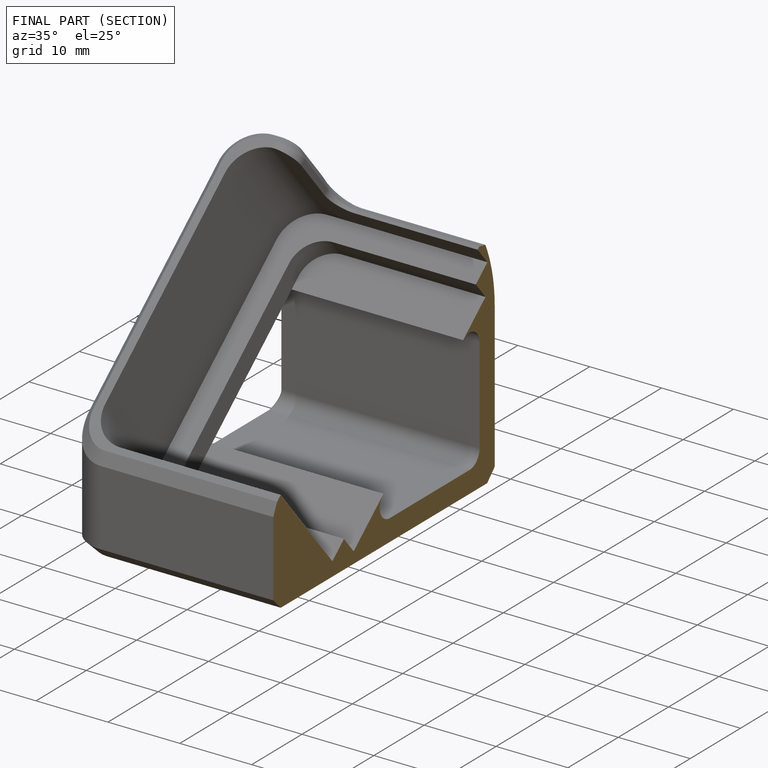
[diagram: finished part — half-section view (interior)]
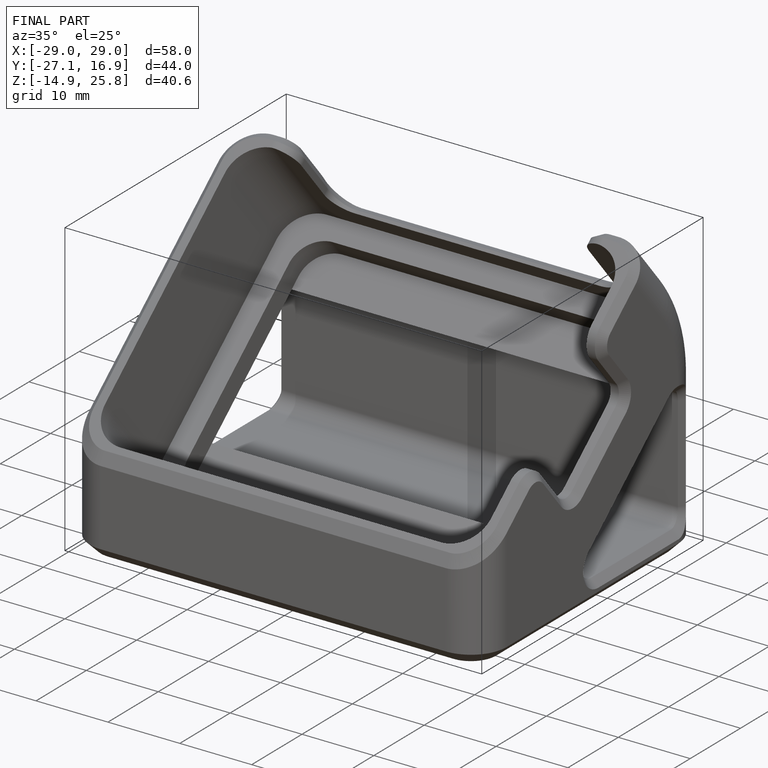
[diagram: finished part — iso view with bounding-box wireframe]
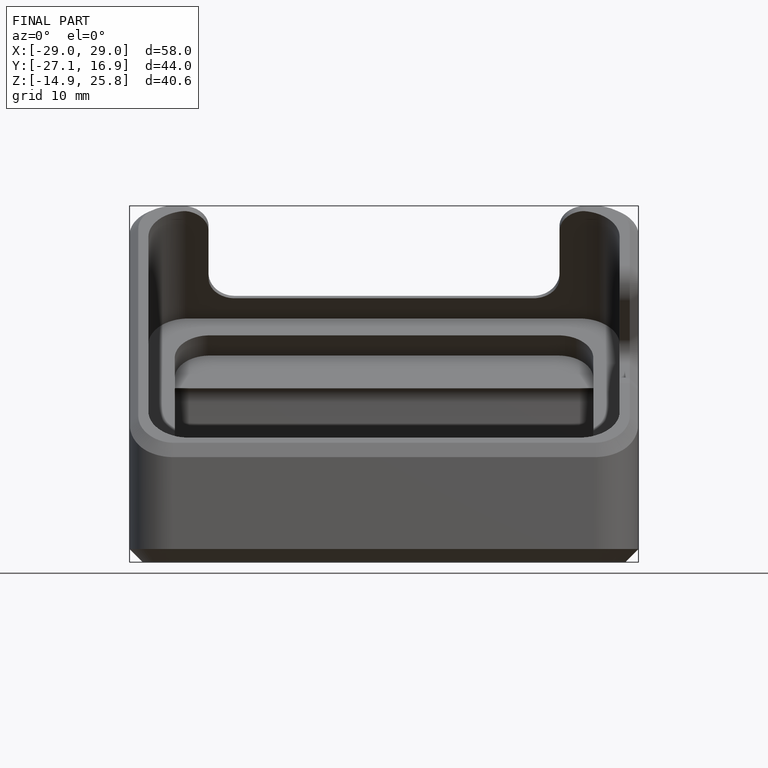
[diagram: finished part — front view with bounding-box wireframe]
